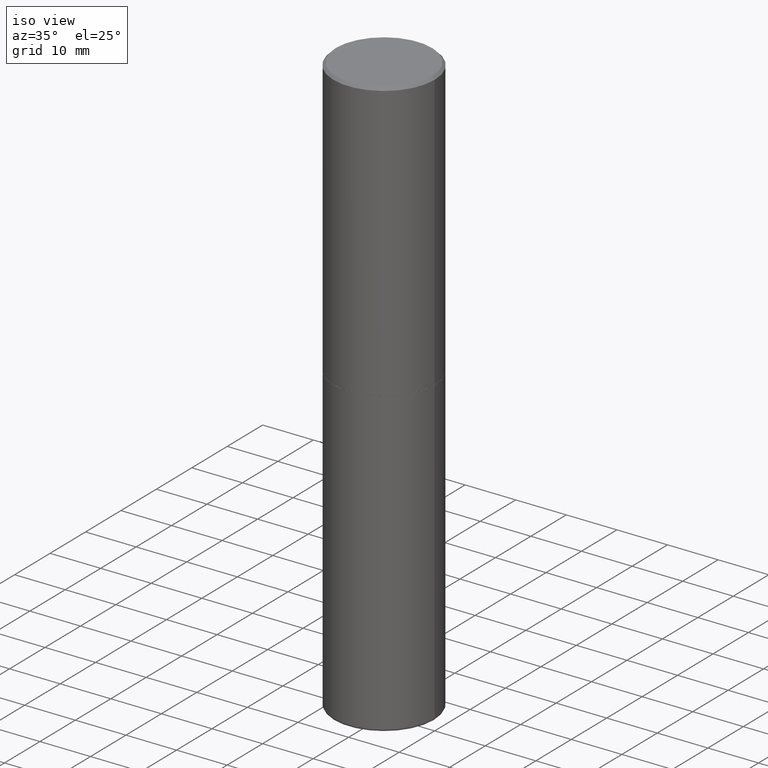
[diagram: clean part render]
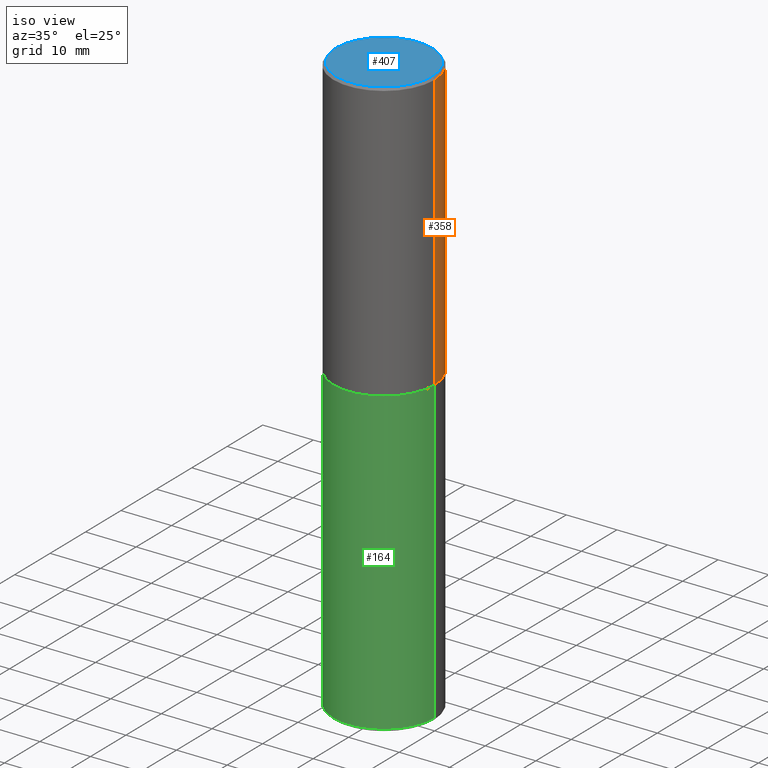
[diagram: same view with three faces highlighted in distinct colors, each labeled with its STEP entity id]
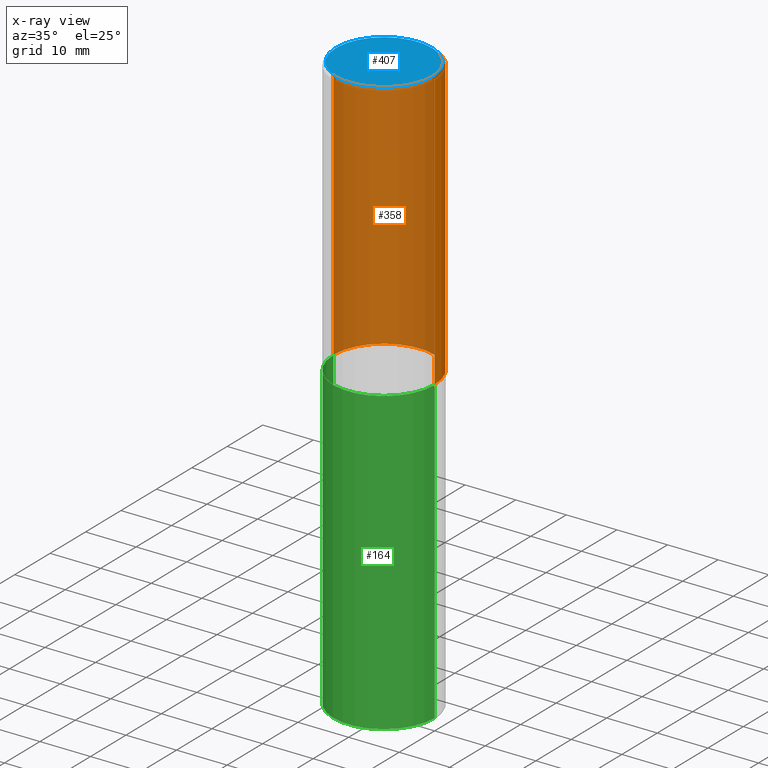
[diagram: x-ray of the same camera — body ghosted, the three highlighted faces saturated]
A machine part, iso view with three faces highlighted in distinct colors.
The next image is the same camera in x-ray (body ghosted, the three faces saturated) — at least one of them is partly hidden behind the body in this view.
Their STEP definitions:

[orange] entity #358 — the highlighted cylindrical surface (partial cylindrical patch) has radius 10 mm, axis along (-0, 0, 1).
#1 = EDGE_CURVE ( 'NONE', #403, #349, #362, .T. ) ;
#11 = DIRECTION ( 'NONE',  ( -2.445468806185136877E-29, 3.491481338843145188E-15, 1.000000000000000000 ) ) ;
#13 = ORIENTED_EDGE ( 'NONE', *, *, #1, .F. ) ;
#15 = CARTESIAN_POINT ( 'NONE',  ( -0.3937000000000001609, 2.797406750687515575E-15, -1.936584745033357296E-29 ) ) ;
#26 = CARTESIAN_POINT ( 'NONE',  ( 0.000000000000000000, 0.000000000000000000, 0.000000000000000000 ) ) ;
#46 = AXIS2_PLACEMENT_3D ( 'NONE', #134, #389, #299 ) ;
#57 = EDGE_CURVE ( 'NONE', #349, #182, #226, .T. ) ;
#59 = AXIS2_PLACEMENT_3D ( 'NONE', #307, #104, #336 ) ;
#70 = CARTESIAN_POINT ( 'NONE',  ( 0.3937000000000001609, -2.749192406205084400E-15, 1.919750796630860732E-29 ) ) ;
#88 = VERTEX_POINT ( 'NONE', #212 ) ;
#95 = DIRECTION ( 'NONE',  ( 1.000000000000000000, -6.982962677686266711E-15, 4.876176775795935793E-29 ) ) ;
#104 = DIRECTION ( 'NONE',  ( -2.445468806185136597E-29, 3.491481338843145583E-15, 1.000000000000000000 ) ) ;
#134 = CARTESIAN_POINT ( 'NONE',  ( 4.890937612370294178E-31, -6.982962677686321191E-17, -0.02000000000000008715 ) ) ;
#149 = ORIENTED_EDGE ( 'NONE', *, *, #57, .F. ) ;
#182 = VERTEX_POINT ( 'NONE', #246 ) ;
#187 = ORIENTED_EDGE ( 'NONE', *, *, #223, .T. ) ;
#193 = AXIS2_PLACEMENT_3D ( 'NONE', #26, #385, #95 ) ;
#195 = FACE_OUTER_BOUND ( 'NONE', #254, .T. ) ;
#197 = DIRECTION ( 'NONE',  ( -2.445468806185136877E-29, 3.491481338843145188E-15, 1.000000000000000000 ) ) ;
#212 = CARTESIAN_POINT ( 'NONE',  ( -0.3937000000000003830, -1.015989167596963746E-15, -2.164399999999999658 ) ) ;
#223 = EDGE_CURVE ( 'NONE', #88, #182, #397, .T. ) ;
#226 = CIRCLE ( 'NONE', #46, 0.3937000000000000499 ) ;
#245 = CIRCLE ( 'NONE', #59, 0.3937000000000002720 ) ;
#246 = CARTESIAN_POINT ( 'NONE',  ( -0.3937000000000000499, 2.679362779428219918E-15, -0.02000000000000008715 ) ) ;
#254 = EDGE_LOOP ( 'NONE', ( #276, #187, #149, #13 ) ) ;
#267 = CARTESIAN_POINT ( 'NONE',  ( 0.3937000000000000499, -2.770807688499515734E-15, -0.02000000000000008715 ) ) ;
#276 = ORIENTED_EDGE ( 'NONE', *, *, #301, .T. ) ;
#299 = DIRECTION ( 'NONE',  ( 1.000000000000000000, -6.982962677686265922E-15, 0.000000000000000000 ) ) ;
#301 = EDGE_CURVE ( 'NONE', #403, #88, #245, .T. ) ;
#307 = CARTESIAN_POINT ( 'NONE',  ( 5.292972684107107621E-29, -7.556962209792102838E-15, -2.164399999999999658 ) ) ;
#324 = CYLINDRICAL_SURFACE ( 'NONE', #193, 0.3937000000000001609 ) ;
#336 = DIRECTION ( 'NONE',  ( 1.000000000000000000, -6.982962677686269077E-15, 0.000000000000000000 ) ) ;
#349 = VERTEX_POINT ( 'NONE', #267 ) ;
#354 = CARTESIAN_POINT ( 'NONE',  ( 0.3937000000000002720, -1.030615461599718763E-14, -2.164399999999999658 ) ) ;
#358 = ADVANCED_FACE ( 'NONE', ( #195 ), #324, .T. ) ;
#362 = LINE ( 'NONE', #70, #395 ) ;
#385 = DIRECTION ( 'NONE',  ( -2.445468806185136597E-29, 3.491481338843145583E-15, 1.000000000000000000 ) ) ;
#389 = DIRECTION ( 'NONE',  ( -2.445468806185136597E-29, 3.491481338843145583E-15, 1.000000000000000000 ) ) ;
#395 = VECTOR ( 'NONE', #197, 39.37007874015748143 ) ;
#397 = LINE ( 'NONE', #15, #410 ) ;
#403 = VERTEX_POINT ( 'NONE', #354 ) ;
#410 = VECTOR ( 'NONE', #11, 39.37007874015748143 ) ;

[blue] entity #407 — the highlighted planar face has unit normal (0, -0, -1).
#24 = PLANE ( 'NONE',  #105 ) ;
#38 = AXIS2_PLACEMENT_3D ( 'NONE', #233, #232, #363 ) ;
#60 = AXIS2_PLACEMENT_3D ( 'NONE', #158, #350, #196 ) ;
#93 = DIRECTION ( 'NONE',  ( 2.438088387897960049E-29, -3.491481338843145188E-15, -1.000000000000000000 ) ) ;
#105 = AXIS2_PLACEMENT_3D ( 'NONE', #388, #93, #194 ) ;
#114 = ORIENTED_EDGE ( 'NONE', *, *, #415, .T. ) ;
#152 = ORIENTED_EDGE ( 'NONE', *, *, #344, .T. ) ;
#158 = CARTESIAN_POINT ( 'NONE',  ( 5.428027354543142984E-45, -7.749784485978325769E-31, -2.219626494852213988E-16 ) ) ;
#194 = DIRECTION ( 'NONE',  ( -1.000000000000000000, 6.982962677686265922E-15, -4.876176775795935793E-29 ) ) ;
#196 = DIRECTION ( 'NONE',  ( 1.000000000000000000, -6.982962677686266711E-15, 4.877734241229871763E-29 ) ) ;
#221 = EDGE_LOOP ( 'NONE', ( #114, #152 ) ) ;
#232 = DIRECTION ( 'NONE',  ( -2.445468806185136597E-29, 3.491481338843145583E-15, 1.000000000000000000 ) ) ;
#233 = CARTESIAN_POINT ( 'NONE',  ( 5.428027354543142984E-45, -7.749784485978325769E-31, -2.219626494852213988E-16 ) ) ;
#270 = CARTESIAN_POINT ( 'NONE',  ( 0.3737000000000003097, -2.667287895133369937E-15, -2.219626494852029345E-16 ) ) ;
#284 = VERTEX_POINT ( 'NONE', #270 ) ;
#305 = CIRCLE ( 'NONE', #60, 0.3737000000000003097 ) ;
#318 = VERTEX_POINT ( 'NONE', #355 ) ;
#323 = FACE_OUTER_BOUND ( 'NONE', #221, .T. ) ;
#344 = EDGE_CURVE ( 'NONE', #284, #318, #375, .T. ) ;
#350 = DIRECTION ( 'NONE',  ( -2.445468806185136597E-29, 3.491481338843145583E-15, 1.000000000000000000 ) ) ;
#355 = CARTESIAN_POINT ( 'NONE',  ( -0.3737000000000003097, 2.644447966039789847E-15, -2.219626494852397645E-16 ) ) ;
#363 = DIRECTION ( 'NONE',  ( 1.000000000000000000, -6.982962677686266711E-15, 4.877734241229871763E-29 ) ) ;
#375 = CIRCLE ( 'NONE', #38, 0.3737000000000003097 ) ;
#388 = CARTESIAN_POINT ( 'NONE',  ( 2.609533152651359776E-15, 0.3737000000000003097, -1.415747901068295320E-15 ) ) ;
#407 = ADVANCED_FACE ( 'NONE', ( #323 ), #24, .F. ) ;
#415 = EDGE_CURVE ( 'NONE', #318, #284, #305, .T. ) ;

[green] entity #164 — the highlighted cylindrical surface (partial cylindrical patch) has radius 10 mm, axis along (-0, 0, 1).
#10 = CYLINDRICAL_SURFACE ( 'NONE', #414, 0.3936999999999999389 ) ;
#16 = VERTEX_POINT ( 'NONE', #392 ) ;
#25 = EDGE_CURVE ( 'NONE', #185, #179, #264, .T. ) ;
#30 = DIRECTION ( 'NONE',  ( 1.000000000000000000, -6.982962677686269866E-15, 0.000000000000000000 ) ) ;
#39 = DIRECTION ( 'NONE',  ( -2.445468806185136877E-29, 3.491481338843145188E-15, 1.000000000000000000 ) ) ;
#51 = FACE_OUTER_BOUND ( 'NONE', #225, .T. ) ;
#63 = DIRECTION ( 'NONE',  ( -2.445468806185136597E-29, 3.491481338843145583E-15, 1.000000000000000000 ) ) ;
#80 = CARTESIAN_POINT ( 'NONE',  ( -0.3936999999999999389, -1.294184197668350187E-14, -4.507899999999999352 ) ) ;
#100 = CARTESIAN_POINT ( 'NONE',  ( -0.3936999999999999389, 2.797406750687513998E-15, -1.936584745033356455E-29 ) ) ;
#128 = VECTOR ( 'NONE', #400, 39.37007874015748143 ) ;
#132 = DIRECTION ( 'NONE',  ( 1.000000000000000000, -6.982962677686265133E-15, 0.000000000000000000 ) ) ;
#144 = AXIS2_PLACEMENT_3D ( 'NONE', #261, #63, #30 ) ;
#145 = VERTEX_POINT ( 'NONE', #306 ) ;
#147 = ORIENTED_EDGE ( 'NONE', *, *, #381, .T. ) ;
#164 = ADVANCED_FACE ( 'NONE', ( #51 ), #10, .T. ) ;
#166 = CARTESIAN_POINT ( 'NONE',  ( 5.295418152913293224E-29, -7.560453691130945845E-15, -2.165399999999999547 ) ) ;
#173 = AXIS2_PLACEMENT_3D ( 'NONE', #166, #300, #132 ) ;
#179 = VERTEX_POINT ( 'NONE', #346 ) ;
#181 = CARTESIAN_POINT ( 'NONE',  ( 0.3936999999999999389, -2.749192406205082822E-15, 1.919750796630859611E-29 ) ) ;
#185 = VERTEX_POINT ( 'NONE', #80 ) ;
#205 = CIRCLE ( 'NONE', #144, 0.3936999999999999389 ) ;
#208 = DIRECTION ( 'NONE',  ( -2.445468806185136597E-29, 3.491481338843145583E-15, 1.000000000000000000 ) ) ;
#225 = EDGE_LOOP ( 'NONE', ( #396, #147, #379, #248 ) ) ;
#240 = LINE ( 'NONE', #181, #128 ) ;
#248 = ORIENTED_EDGE ( 'NONE', *, *, #352, .F. ) ;
#259 = EDGE_CURVE ( 'NONE', #145, #16, #240, .T. ) ;
#261 = CARTESIAN_POINT ( 'NONE',  ( 1.102392883140197736E-28, -1.573924872737101586E-14, -4.507899999999999352 ) ) ;
#264 = LINE ( 'NONE', #100, #404 ) ;
#300 = DIRECTION ( 'NONE',  ( -2.445468806185136597E-29, 3.491481338843145583E-15, 1.000000000000000000 ) ) ;
#306 = CARTESIAN_POINT ( 'NONE',  ( 0.3936999999999999389, -1.848844113357609908E-14, -4.507899999999999352 ) ) ;
#346 = CARTESIAN_POINT ( 'NONE',  ( -0.3937000000000000499, -8.852444458563466857E-15, -2.165399999999999547 ) ) ;
#352 = EDGE_CURVE ( 'NONE', #179, #16, #387, .T. ) ;
#368 = CARTESIAN_POINT ( 'NONE',  ( 0.000000000000000000, 0.000000000000000000, 0.000000000000000000 ) ) ;
#379 = ORIENTED_EDGE ( 'NONE', *, *, #259, .T. ) ;
#381 = EDGE_CURVE ( 'NONE', #185, #145, #205, .T. ) ;
#387 = CIRCLE ( 'NONE', #173, 0.3937000000000000499 ) ;
#392 = CARTESIAN_POINT ( 'NONE',  ( 0.3937000000000000499, -1.030964609733602906E-14, -2.165399999999999547 ) ) ;
#396 = ORIENTED_EDGE ( 'NONE', *, *, #25, .F. ) ;
#399 = DIRECTION ( 'NONE',  ( 1.000000000000000000, -6.982962677686266711E-15, 4.876176775795935793E-29 ) ) ;
#400 = DIRECTION ( 'NONE',  ( -2.445468806185136877E-29, 3.491481338843145188E-15, 1.000000000000000000 ) ) ;
#404 = VECTOR ( 'NONE', #39, 39.37007874015748143 ) ;
#414 = AXIS2_PLACEMENT_3D ( 'NONE', #368, #208, #399 ) ;